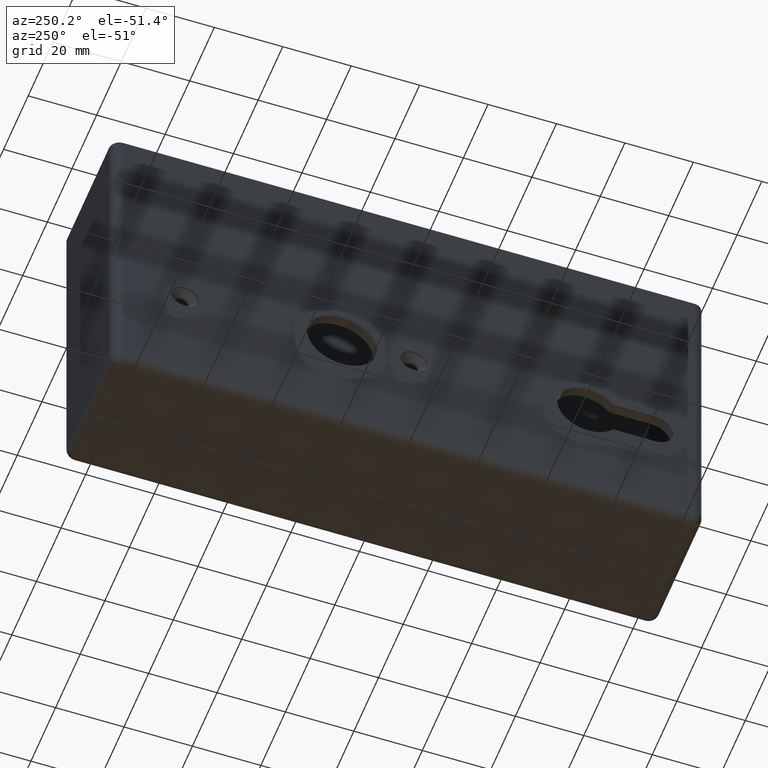
[diagram: clean part render]
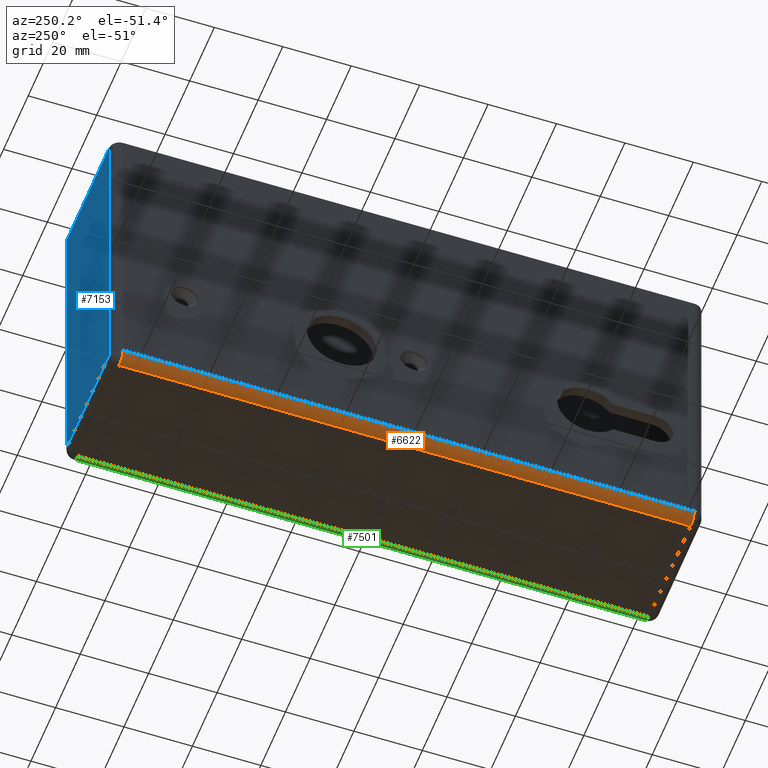
[diagram: same view with three faces highlighted in distinct colors, each labeled with its STEP entity id]
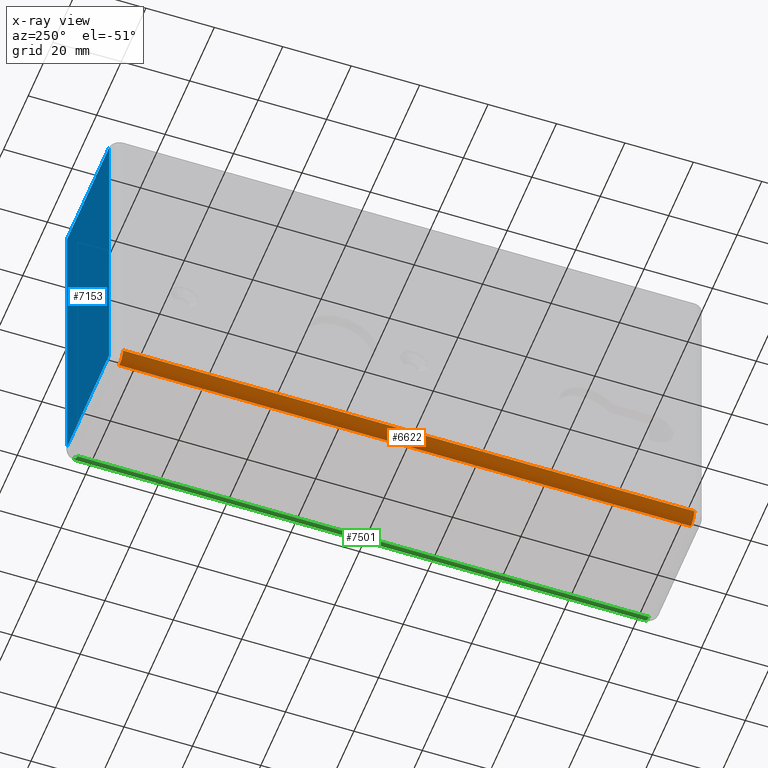
[diagram: x-ray of the same camera — body ghosted, the three highlighted faces saturated]
A machine part, auxiliary view with three faces highlighted in distinct colors.
The next image is the same camera in x-ray (body ghosted, the three faces saturated) — at least one of them is partly hidden behind the body in this view.
Their STEP definitions:

[orange] entity #6622 — the highlighted cylindrical surface (edge-blend (fillet) strip) has radius 3 mm, axis along (0, -1, 0).
#747 = CARTESIAN_POINT ( 'NONE',  ( -19.99999999999998224, -83.49999999999997158, -44.25000000000000000 ) ) ;
#791 = CARTESIAN_POINT ( 'NONE',  ( -16.99999999999998224, -83.49999999999997158, -44.25000000000000000 ) ) ;
#1226 = VERTEX_POINT ( 'NONE', #2176 ) ;
#1858 = EDGE_CURVE ( 'NONE', #2217, #10566, #8580, .T. ) ;
#2176 = CARTESIAN_POINT ( 'NONE',  ( -20.00000000000000355, 83.50000000000000000, -44.25000000000000000 ) ) ;
#2187 = AXIS2_PLACEMENT_3D ( 'NONE', #12660, #6591, #2501 ) ;
#2217 = VERTEX_POINT ( 'NONE', #747 ) ;
#2501 = DIRECTION ( 'NONE',  ( 1.000000000000000000, 0.000000000000000000, 0.000000000000000000 ) ) ;
#2831 = ORIENTED_EDGE ( 'NONE', *, *, #8867, .F. ) ;
#3199 = EDGE_LOOP ( 'NONE', ( #6535, #5282, #4999, #2831 ) ) ;
#3878 = VECTOR ( 'NONE', #7170, 1000.000000000000000 ) ;
#4999 = ORIENTED_EDGE ( 'NONE', *, *, #12592, .F. ) ;
#5065 = AXIS2_PLACEMENT_3D ( 'NONE', #791, #12979, #10078 ) ;
#5072 = VERTEX_POINT ( 'NONE', #6297 ) ;
#5282 = ORIENTED_EDGE ( 'NONE', *, *, #6631, .F. ) ;
#5369 = VECTOR ( 'NONE', #5414, 1000.000000000000000 ) ;
#5414 = DIRECTION ( 'NONE',  ( -1.203276399521484674E-16, 1.000000000000000000, -0.000000000000000000 ) ) ;
#6297 = CARTESIAN_POINT ( 'NONE',  ( -17.00000000000000355, 83.50000000000000000, -47.25000000000000000 ) ) ;
#6535 = ORIENTED_EDGE ( 'NONE', *, *, #1858, .F. ) ;
#6591 = DIRECTION ( 'NONE',  ( 1.203276399521484674E-16, -1.000000000000000000, 0.000000000000000000 ) ) ;
#6600 = FACE_OUTER_BOUND ( 'NONE', #3199, .T. ) ;
#6622 = ADVANCED_FACE ( 'NONE', ( #6600 ), #9646, .T. ) ;
#6631 = EDGE_CURVE ( 'NONE', #1226, #2217, #8986, .T. ) ;
#7170 = DIRECTION ( 'NONE',  ( 1.203276399521484674E-16, -1.000000000000000000, 0.000000000000000000 ) ) ;
#7770 = CARTESIAN_POINT ( 'NONE',  ( -17.00000000000000355, 83.50000000000000000, -44.25000000000000000 ) ) ;
#8216 = LINE ( 'NONE', #8549, #5369 ) ;
#8549 = CARTESIAN_POINT ( 'NONE',  ( -16.99999999999999289, -2.045569879186523330E-15, -47.25000000000000000 ) ) ;
#8580 = CIRCLE ( 'NONE', #5065, 3.000000000000002665 ) ;
#8848 = CIRCLE ( 'NONE', #12675, 3.000000000000002665 ) ;
#8867 = EDGE_CURVE ( 'NONE', #10566, #5072, #8216, .T. ) ;
#8986 = LINE ( 'NONE', #9186, #3878 ) ;
#9186 = CARTESIAN_POINT ( 'NONE',  ( -20.00000000000000355, 86.50000000000001421, -44.25000000000000000 ) ) ;
#9646 = CYLINDRICAL_SURFACE ( 'NONE', #2187, 2.999999999999999112 ) ;
#10078 = DIRECTION ( 'NONE',  ( 0.000000000000000000, 0.000000000000000000, -1.000000000000000000 ) ) ;
#10566 = VERTEX_POINT ( 'NONE', #12338 ) ;
#11662 = DIRECTION ( 'NONE',  ( 0.000000000000000000, 0.000000000000000000, 1.000000000000000000 ) ) ;
#12338 = CARTESIAN_POINT ( 'NONE',  ( -16.99999999999998224, -83.49999999999997158, -47.25000000000000000 ) ) ;
#12592 = EDGE_CURVE ( 'NONE', #5072, #1226, #8848, .T. ) ;
#12660 = CARTESIAN_POINT ( 'NONE',  ( -17.00000000000000355, 86.50000000000001421, -44.25000000000000000 ) ) ;
#12675 = AXIS2_PLACEMENT_3D ( 'NONE', #7770, #12880, #11662 ) ;
#12880 = DIRECTION ( 'NONE',  ( 0.000000000000000000, 1.000000000000000000, 0.000000000000000000 ) ) ;
#12979 = DIRECTION ( 'NONE',  ( -0.000000000000000000, -1.000000000000000000, -0.000000000000000000 ) ) ;

[blue] entity #7153 — the highlighted planar face has unit normal (0, -1, 0).
#392 = PLANE ( 'NONE',  #9376 ) ;
#965 = VECTOR ( 'NONE', #4244, 1000.000000000000000 ) ;
#1237 = EDGE_CURVE ( 'NONE', #6523, #2550, #10217, .T. ) ;
#1323 = VECTOR ( 'NONE', #12499, 1000.000000000000000 ) ;
#2304 = ORIENTED_EDGE ( 'NONE', *, *, #9583, .T. ) ;
#2508 = VECTOR ( 'NONE', #10205, 1000.000000000000000 ) ;
#2550 = VERTEX_POINT ( 'NONE', #9829 ) ;
#2662 = ORIENTED_EDGE ( 'NONE', *, *, #5601, .T. ) ;
#3063 = ORIENTED_EDGE ( 'NONE', *, *, #1237, .F. ) ;
#3363 = LINE ( 'NONE', #7203, #965 ) ;
#4076 = CARTESIAN_POINT ( 'NONE',  ( -20.00000000000000355, 86.50000000000001421, -44.25000000000000000 ) ) ;
#4244 = DIRECTION ( 'NONE',  ( 0.000000000000000000, 0.000000000000000000, -1.000000000000000000 ) ) ;
#4319 = CARTESIAN_POINT ( 'NONE',  ( -17.00000000000000355, 86.50000000000001421, 47.25000000000000000 ) ) ;
#4344 = CARTESIAN_POINT ( 'NONE',  ( -17.00000000000000355, 86.50000000000001421, -44.25000000000000000 ) ) ;
#5104 = CARTESIAN_POINT ( 'NONE',  ( -20.00000000000000355, 86.50000000000001421, 47.25000000000000000 ) ) ;
#5601 = EDGE_CURVE ( 'NONE', #11522, #2550, #6469, .T. ) ;
#6375 = ORIENTED_EDGE ( 'NONE', *, *, #7694, .T. ) ;
#6469 = LINE ( 'NONE', #4319, #1323 ) ;
#6523 = VERTEX_POINT ( 'NONE', #13179 ) ;
#7153 = ADVANCED_FACE ( 'NONE', ( #7542 ), #392, .F. ) ;
#7203 = CARTESIAN_POINT ( 'NONE',  ( 16.99999999999999289, 86.50000000000001421, 47.25000000000000000 ) ) ;
#7542 = FACE_OUTER_BOUND ( 'NONE', #8138, .T. ) ;
#7694 = EDGE_CURVE ( 'NONE', #6523, #13269, #3363, .T. ) ;
#7778 = LINE ( 'NONE', #4076, #10206 ) ;
#8138 = EDGE_LOOP ( 'NONE', ( #2304, #2662, #3063, #6375 ) ) ;
#8255 = DIRECTION ( 'NONE',  ( -1.000000000000000000, 0.000000000000000000, 0.000000000000000000 ) ) ;
#9376 = AXIS2_PLACEMENT_3D ( 'NONE', #12793, #10821, #9708 ) ;
#9583 = EDGE_CURVE ( 'NONE', #13269, #11522, #7778, .T. ) ;
#9708 = DIRECTION ( 'NONE',  ( 0.000000000000000000, -0.000000000000000000, -1.000000000000000000 ) ) ;
#9829 = CARTESIAN_POINT ( 'NONE',  ( -17.00000000000000355, 86.50000000000001421, 47.25000000000000000 ) ) ;
#10205 = DIRECTION ( 'NONE',  ( -1.000000000000000000, -0.000000000000000000, -0.000000000000000000 ) ) ;
#10206 = VECTOR ( 'NONE', #8255, 1000.000000000000000 ) ;
#10217 = LINE ( 'NONE', #5104, #2508 ) ;
#10821 = DIRECTION ( 'NONE',  ( 0.000000000000000000, -1.000000000000000000, 0.000000000000000000 ) ) ;
#11067 = CARTESIAN_POINT ( 'NONE',  ( 16.99999999999999289, 86.50000000000001421, -44.25000000000000000 ) ) ;
#11522 = VERTEX_POINT ( 'NONE', #4344 ) ;
#12499 = DIRECTION ( 'NONE',  ( -0.000000000000000000, -0.000000000000000000, 1.000000000000000000 ) ) ;
#12793 = CARTESIAN_POINT ( 'NONE',  ( -20.00000000000000355, 86.50000000000001421, 47.25000000000000000 ) ) ;
#13179 = CARTESIAN_POINT ( 'NONE',  ( 16.99999999999999289, 86.50000000000001421, 47.25000000000000000 ) ) ;
#13269 = VERTEX_POINT ( 'NONE', #11067 ) ;

[green] entity #7501 — the highlighted cylindrical surface (edge-blend (fillet) strip) has radius 3 mm, axis along (-0, 1, -0).
#563 = DIRECTION ( 'NONE',  ( 0.000000000000000000, 0.000000000000000000, -1.000000000000000000 ) ) ;
#910 = CARTESIAN_POINT ( 'NONE',  ( 16.99999999999999289, 86.50000000000001421, -44.25000000000000000 ) ) ;
#1209 = CIRCLE ( 'NONE', #12840, 3.000000000000002665 ) ;
#1435 = VERTEX_POINT ( 'NONE', #11752 ) ;
#1725 = CARTESIAN_POINT ( 'NONE',  ( 16.99999999999999289, 83.50000000000000000, -47.25000000000000000 ) ) ;
#1978 = DIRECTION ( 'NONE',  ( -1.203276399521484674E-16, 1.000000000000000000, 0.000000000000000000 ) ) ;
#2430 = VECTOR ( 'NONE', #4980, 1000.000000000000000 ) ;
#2571 = LINE ( 'NONE', #10226, #2430 ) ;
#2848 = CARTESIAN_POINT ( 'NONE',  ( 17.00000000000001421, -83.49999999999997158, -47.25000000000000000 ) ) ;
#2855 = EDGE_LOOP ( 'NONE', ( #5957, #8979, #9455, #3822 ) ) ;
#3534 = VERTEX_POINT ( 'NONE', #2848 ) ;
#3535 = VERTEX_POINT ( 'NONE', #1725 ) ;
#3822 = ORIENTED_EDGE ( 'NONE', *, *, #3832, .F. ) ;
#3832 = EDGE_CURVE ( 'NONE', #1435, #6410, #5052, .T. ) ;
#4100 = DIRECTION ( 'NONE',  ( -1.000000000000000000, 0.000000000000000000, 0.000000000000000000 ) ) ;
#4902 = CIRCLE ( 'NONE', #8705, 3.000000000000002665 ) ;
#4980 = DIRECTION ( 'NONE',  ( 1.203276399521484674E-16, -1.000000000000000000, 0.000000000000000000 ) ) ;
#5052 = LINE ( 'NONE', #8111, #10799 ) ;
#5097 = AXIS2_PLACEMENT_3D ( 'NONE', #910, #7007, #4100 ) ;
#5844 = CARTESIAN_POINT ( 'NONE',  ( 17.00000000000001421, -83.49999999999997158, -44.25000000000000000 ) ) ;
#5957 = ORIENTED_EDGE ( 'NONE', *, *, #10342, .T. ) ;
#6410 = VERTEX_POINT ( 'NONE', #8952 ) ;
#6705 = CARTESIAN_POINT ( 'NONE',  ( 16.99999999999999289, 83.50000000000000000, -44.25000000000000000 ) ) ;
#6782 = DIRECTION ( 'NONE',  ( 0.000000000000000000, 0.000000000000000000, 1.000000000000000000 ) ) ;
#6962 = EDGE_CURVE ( 'NONE', #3535, #3534, #2571, .T. ) ;
#7007 = DIRECTION ( 'NONE',  ( -1.203276399521484674E-16, 1.000000000000000000, -0.000000000000000000 ) ) ;
#7501 = ADVANCED_FACE ( 'NONE', ( #12345 ), #11851, .T. ) ;
#7737 = DIRECTION ( 'NONE',  ( 0.000000000000000000, -1.000000000000000000, -0.000000000000000000 ) ) ;
#8111 = CARTESIAN_POINT ( 'NONE',  ( 19.99999999999999289, 86.50000000000001421, -44.25000000000000000 ) ) ;
#8705 = AXIS2_PLACEMENT_3D ( 'NONE', #5844, #8839, #563 ) ;
#8839 = DIRECTION ( 'NONE',  ( -0.000000000000000000, 1.000000000000000000, -0.000000000000000000 ) ) ;
#8952 = CARTESIAN_POINT ( 'NONE',  ( 19.99999999999999289, 83.50000000000000000, -44.25000000000000000 ) ) ;
#8979 = ORIENTED_EDGE ( 'NONE', *, *, #6962, .F. ) ;
#9455 = ORIENTED_EDGE ( 'NONE', *, *, #10357, .T. ) ;
#10226 = CARTESIAN_POINT ( 'NONE',  ( 17.00000000000000355, 2.045569879186524513E-15, -47.25000000000000000 ) ) ;
#10342 = EDGE_CURVE ( 'NONE', #1435, #3534, #4902, .T. ) ;
#10357 = EDGE_CURVE ( 'NONE', #3535, #6410, #1209, .T. ) ;
#10799 = VECTOR ( 'NONE', #1978, 1000.000000000000000 ) ;
#11752 = CARTESIAN_POINT ( 'NONE',  ( 20.00000000000001421, -83.49999999999997158, -44.25000000000000000 ) ) ;
#11851 = CYLINDRICAL_SURFACE ( 'NONE', #5097, 2.999999999999999112 ) ;
#12345 = FACE_OUTER_BOUND ( 'NONE', #2855, .T. ) ;
#12840 = AXIS2_PLACEMENT_3D ( 'NONE', #6705, #7737, #6782 ) ;